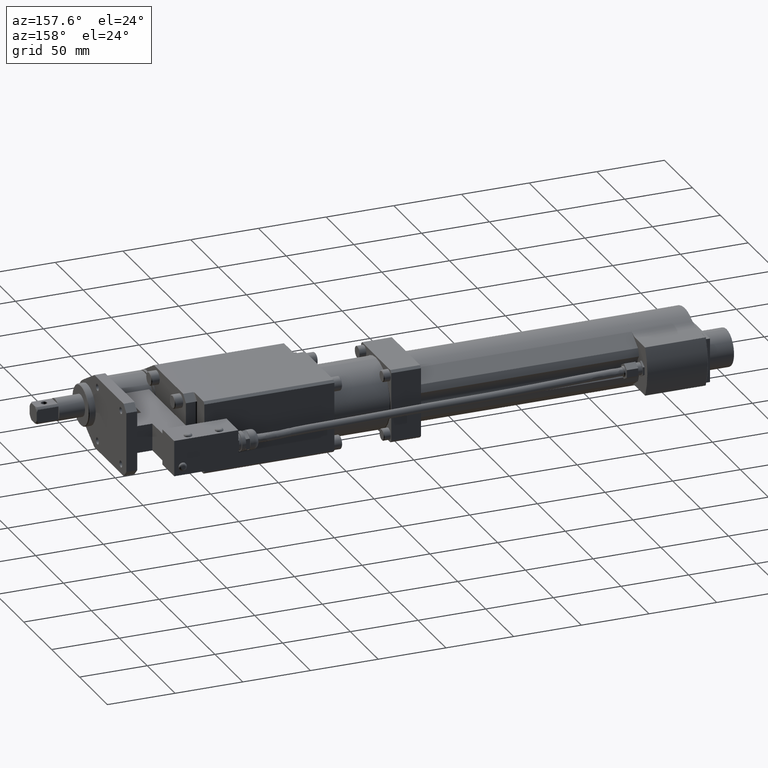
[diagram: clean part render]
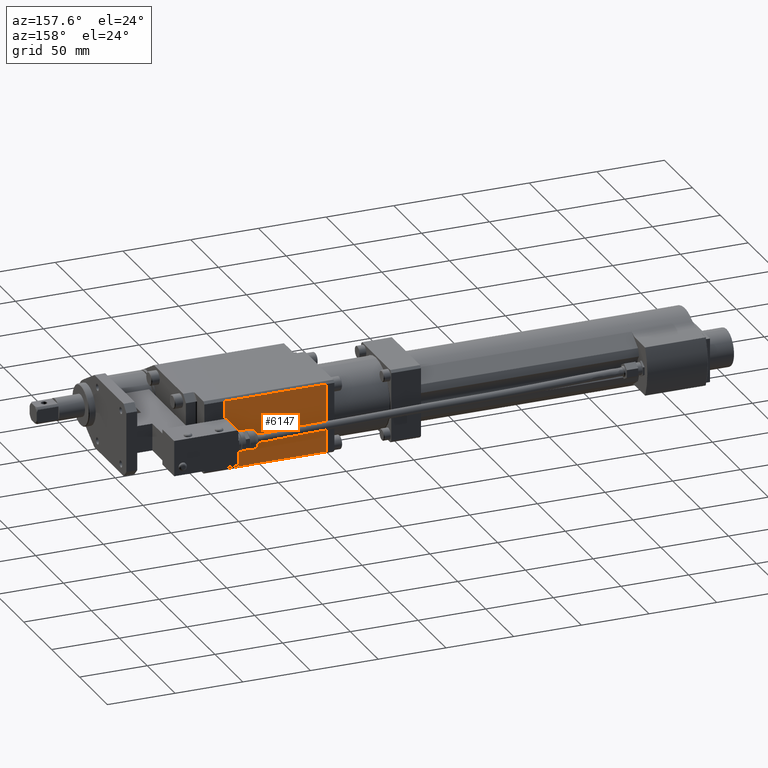
[diagram: same view with one face highlighted and labeled with its STEP entity id]
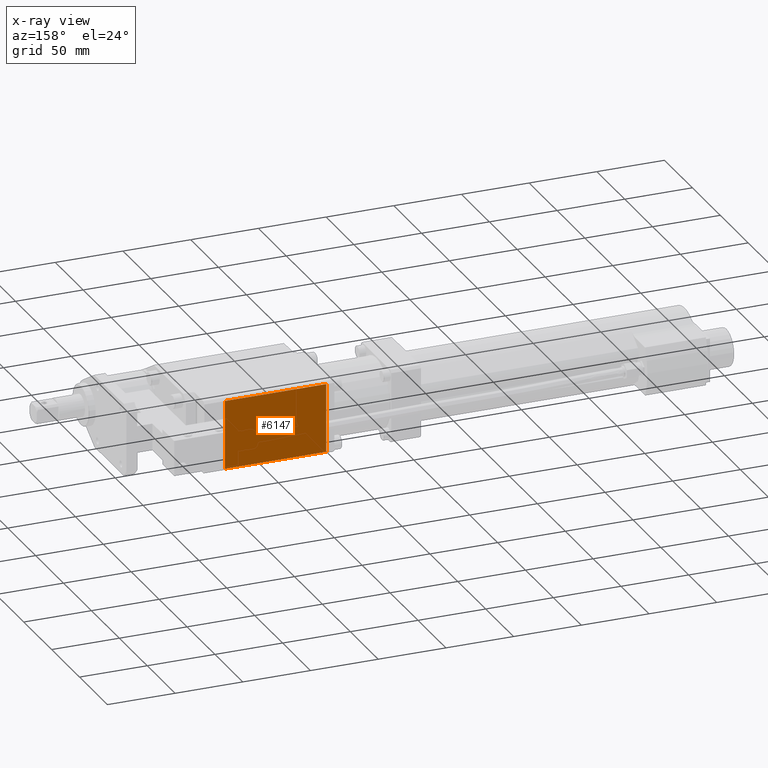
[diagram: x-ray of the same camera — body ghosted, the highlighted face saturated]
A machine part, auxiliary view. The second image highlights one B-rep face of the part: STEP entity #6147.
The next image is the same camera in x-ray: the body ghosted, the highlighted face saturated — about 0% of this face is hidden behind the body in this view.
In plain terms, the highlighted planar face has unit normal (0, -1, -0).
Its self-contained STEP definition (entity closure, byte-faithful):
#543 = CARTESIAN_POINT ( 'NONE',  ( -140.0000000000000000, 83.70000000000000300, 25.30000000000000100 ) ) ;
#589 = EDGE_CURVE ( 'NONE', #2456, #5116, #8689, .T. ) ;
#1594 = ORIENTED_EDGE ( 'NONE', *, *, #7893, .T. ) ;
#1910 = VECTOR ( 'NONE', #4178, 1000.000000000000000 ) ;
#2237 = DIRECTION ( 'NONE',  ( 0.0000000000000000000, -1.000000000000000000, -0.0000000000000000000 ) ) ;
#2456 = VERTEX_POINT ( 'NONE', #4882 ) ;
#2536 = CARTESIAN_POINT ( 'NONE',  ( -67.00000000000000000, 83.70000000000000300, 25.30000000000000100 ) ) ;
#2792 = FACE_OUTER_BOUND ( 'NONE', #10765, .T. ) ;
#3103 = CARTESIAN_POINT ( 'NONE',  ( -67.00000000000000000, 83.70000000000000300, 25.30000000000000100 ) ) ;
#3154 = CARTESIAN_POINT ( 'NONE',  ( -140.0000000000000000, 83.70000000000000300, -25.30000000000000100 ) ) ;
#3180 = CARTESIAN_POINT ( 'NONE',  ( -142.0000000000000300, 83.70000000000000300, -25.30000000000000100 ) ) ;
#3968 = DIRECTION ( 'NONE',  ( 1.000000000000000000, -0.0000000000000000000, -0.0000000000000000000 ) ) ;
#4178 = DIRECTION ( 'NONE',  ( 0.0000000000000000000, 0.0000000000000000000, -1.000000000000000000 ) ) ;
#4574 = VERTEX_POINT ( 'NONE', #10937 ) ;
#4793 = AXIS2_PLACEMENT_3D ( 'NONE', #543, #2237, #8178 ) ;
#4882 = CARTESIAN_POINT ( 'NONE',  ( -142.0000000000000300, 83.70000000000000300, 25.30000000000000100 ) ) ;
#5111 = ORIENTED_EDGE ( 'NONE', *, *, #6543, .F. ) ;
#5116 = VERTEX_POINT ( 'NONE', #9794 ) ;
#5209 = VECTOR ( 'NONE', #3968, 1000.000000000000000 ) ;
#6147 = ADVANCED_FACE ( 'NONE', ( #2792 ), #8132, .F. ) ;
#6420 = LINE ( 'NONE', #2536, #1910 ) ;
#6543 = EDGE_CURVE ( 'NONE', #5116, #4574, #10116, .T. ) ;
#6981 = ORIENTED_EDGE ( 'NONE', *, *, #7570, .T. ) ;
#7570 = EDGE_CURVE ( 'NONE', #8609, #4574, #6420, .T. ) ;
#7842 = VECTOR ( 'NONE', #9120, 1000.000000000000000 ) ;
#7893 = EDGE_CURVE ( 'NONE', #2456, #8609, #10006, .T. ) ;
#8132 = PLANE ( 'NONE',  #4793 ) ;
#8178 = DIRECTION ( 'NONE',  ( 0.0000000000000000000, 0.0000000000000000000, -1.000000000000000000 ) ) ;
#8513 = ORIENTED_EDGE ( 'NONE', *, *, #589, .F. ) ;
#8609 = VERTEX_POINT ( 'NONE', #3103 ) ;
#8689 = LINE ( 'NONE', #3180, #10664 ) ;
#9120 = DIRECTION ( 'NONE',  ( 1.000000000000000000, -0.0000000000000000000, -0.0000000000000000000 ) ) ;
#9794 = CARTESIAN_POINT ( 'NONE',  ( -142.0000000000000300, 83.70000000000000300, -25.30000000000000100 ) ) ;
#10001 = DIRECTION ( 'NONE',  ( -0.0000000000000000000, -0.0000000000000000000, -1.000000000000000000 ) ) ;
#10006 = LINE ( 'NONE', #10758, #5209 ) ;
#10116 = LINE ( 'NONE', #3154, #7842 ) ;
#10664 = VECTOR ( 'NONE', #10001, 1000.000000000000000 ) ;
#10758 = CARTESIAN_POINT ( 'NONE',  ( -140.0000000000000000, 83.70000000000000300, 25.30000000000000100 ) ) ;
#10765 = EDGE_LOOP ( 'NONE', ( #6981, #5111, #8513, #1594 ) ) ;
#10937 = CARTESIAN_POINT ( 'NONE',  ( -67.00000000000000000, 83.70000000000000300, -25.30000000000000100 ) ) ;